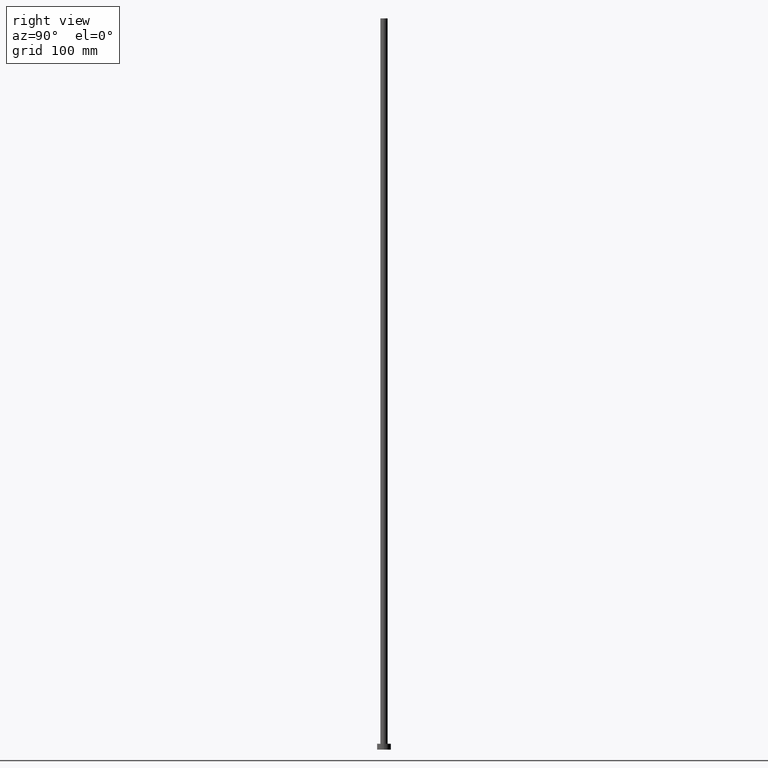
[diagram: clean part render]
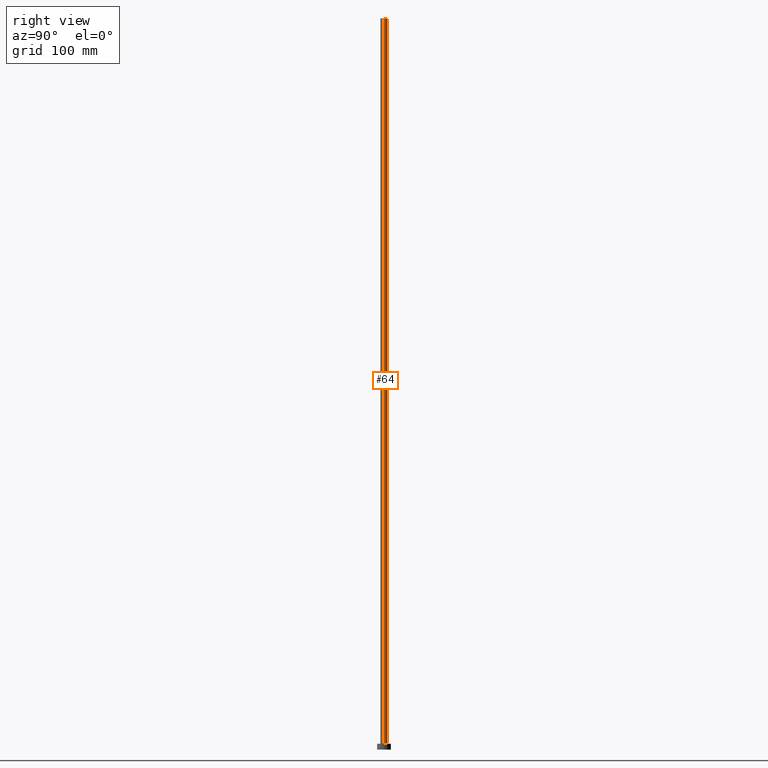
[diagram: same view with one face highlighted and labeled with its STEP entity id]
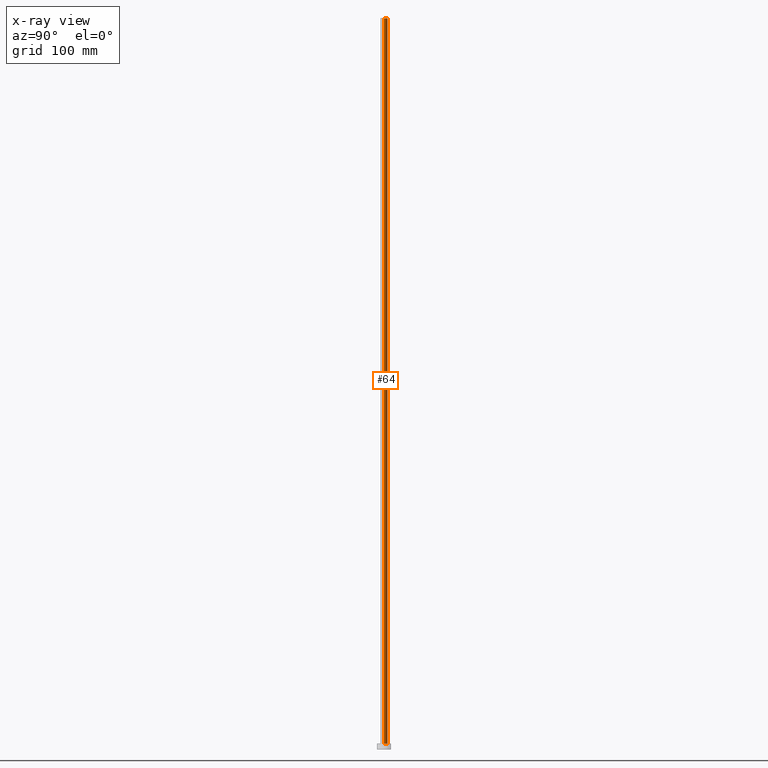
[diagram: x-ray of the same camera — body ghosted, the highlighted face saturated]
A machine part, right view. The second image highlights one B-rep face of the part: STEP entity #64.
The next image is the same camera in x-ray: the body ghosted, the highlighted face saturated — about 0% of this face is hidden behind the body in this view.
In plain terms, the highlighted cylindrical surface (edge-blend (fillet) strip) has radius 3.1 mm, axis along (-0, -0, -1).
Its self-contained STEP definition (entity closure, byte-faithful):
#1 = VECTOR ( 'NONE', #219, 1000.000000000000000 ) ;
#24 = CARTESIAN_POINT ( 'NONE',  ( 0.000000000000000000, 0.000000000000000000, 5.000000000000000000 ) ) ;
#27 = VERTEX_POINT ( 'NONE', #54 ) ;
#40 = LINE ( 'NONE', #42, #62 ) ;
#42 = CARTESIAN_POINT ( 'NONE',  ( -3.100000000000000089, 0.000000000000000000, 630.0000000000000000 ) ) ;
#47 = VERTEX_POINT ( 'NONE', #255 ) ;
#52 = CARTESIAN_POINT ( 'NONE',  ( -3.100000000000000089, 0.000000000000000000, 630.0000000000000000 ) ) ;
#54 = CARTESIAN_POINT ( 'NONE',  ( 3.100000000000000089, 3.796405077356794918E-16, 630.0000000000000000 ) ) ;
#57 = CYLINDRICAL_SURFACE ( 'NONE', #72, 3.100000000000000089 ) ;
#61 = EDGE_CURVE ( 'NONE', #27, #47, #119, .T. ) ;
#62 = VECTOR ( 'NONE', #134, 1000.000000000000000 ) ;
#64 = ADVANCED_FACE ( 'NONE', ( #95 ), #57, .T. ) ;
#72 = AXIS2_PLACEMENT_3D ( 'NONE', #235, #130, #215 ) ;
#80 = CIRCLE ( 'NONE', #117, 3.100000000000000089 ) ;
#83 = ORIENTED_EDGE ( 'NONE', *, *, #150, .T. ) ;
#86 = EDGE_CURVE ( 'NONE', #177, #107, #40, .T. ) ;
#95 = FACE_OUTER_BOUND ( 'NONE', #202, .T. ) ;
#107 = VERTEX_POINT ( 'NONE', #171 ) ;
#117 = AXIS2_PLACEMENT_3D ( 'NONE', #238, #213, #251 ) ;
#119 = LINE ( 'NONE', #152, #1 ) ;
#130 = DIRECTION ( 'NONE',  ( -0.000000000000000000, -0.000000000000000000, -1.000000000000000000 ) ) ;
#131 = EDGE_CURVE ( 'NONE', #27, #177, #80, .T. ) ;
#134 = DIRECTION ( 'NONE',  ( -0.000000000000000000, -0.000000000000000000, -1.000000000000000000 ) ) ;
#142 = ORIENTED_EDGE ( 'NONE', *, *, #131, .F. ) ;
#150 = EDGE_CURVE ( 'NONE', #47, #107, #218, .T. ) ;
#152 = CARTESIAN_POINT ( 'NONE',  ( 3.100000000000000089, 3.796405077356794918E-16, 630.0000000000000000 ) ) ;
#159 = ORIENTED_EDGE ( 'NONE', *, *, #86, .F. ) ;
#171 = CARTESIAN_POINT ( 'NONE',  ( -3.100000000000000089, 0.000000000000000000, 5.000000000000000000 ) ) ;
#177 = VERTEX_POINT ( 'NONE', #52 ) ;
#194 = DIRECTION ( 'NONE',  ( 0.000000000000000000, 0.000000000000000000, 1.000000000000000000 ) ) ;
#202 = EDGE_LOOP ( 'NONE', ( #142, #227, #83, #159 ) ) ;
#213 = DIRECTION ( 'NONE',  ( 0.000000000000000000, 0.000000000000000000, 1.000000000000000000 ) ) ;
#215 = DIRECTION ( 'NONE',  ( -1.000000000000000000, 0.000000000000000000, 0.000000000000000000 ) ) ;
#218 = CIRCLE ( 'NONE', #246, 3.100000000000000089 ) ;
#219 = DIRECTION ( 'NONE',  ( -0.000000000000000000, -0.000000000000000000, -1.000000000000000000 ) ) ;
#227 = ORIENTED_EDGE ( 'NONE', *, *, #61, .T. ) ;
#235 = CARTESIAN_POINT ( 'NONE',  ( 0.000000000000000000, 0.000000000000000000, 630.0000000000000000 ) ) ;
#238 = CARTESIAN_POINT ( 'NONE',  ( 0.000000000000000000, 0.000000000000000000, 630.0000000000000000 ) ) ;
#246 = AXIS2_PLACEMENT_3D ( 'NONE', #24, #194, #253 ) ;
#251 = DIRECTION ( 'NONE',  ( 1.000000000000000000, 0.000000000000000000, 0.000000000000000000 ) ) ;
#253 = DIRECTION ( 'NONE',  ( 1.000000000000000000, 0.000000000000000000, 0.000000000000000000 ) ) ;
#255 = CARTESIAN_POINT ( 'NONE',  ( 3.100000000000000089, 3.796405077356794918E-16, 5.000000000000000000 ) ) ;